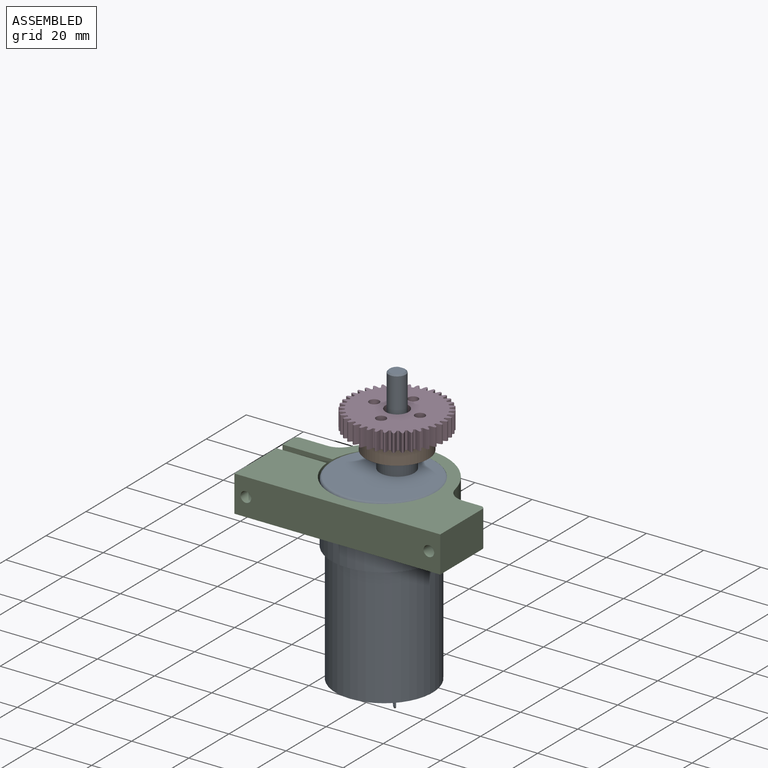
[diagram: assembled view]
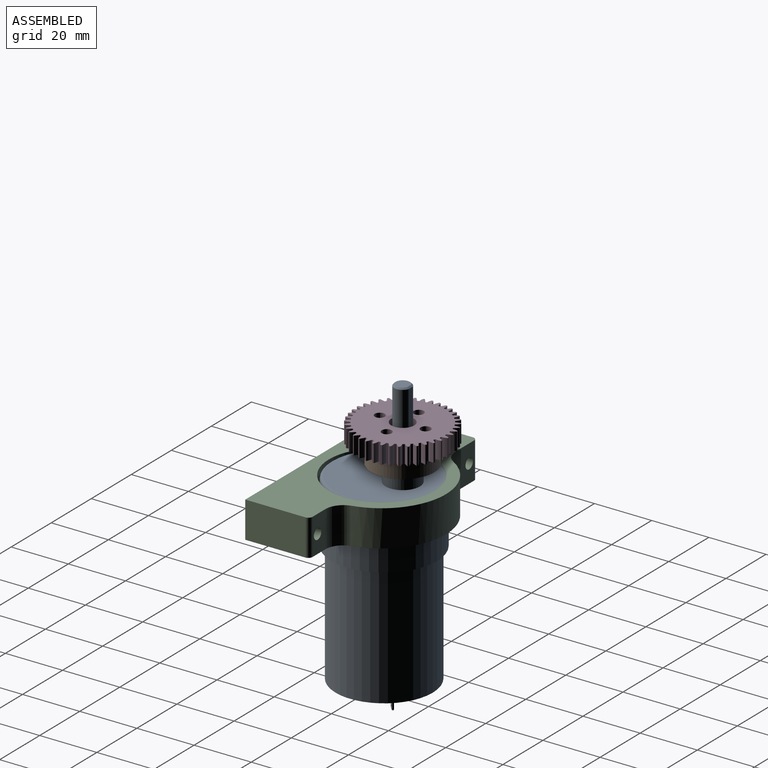
[diagram: assembled view, second angle]
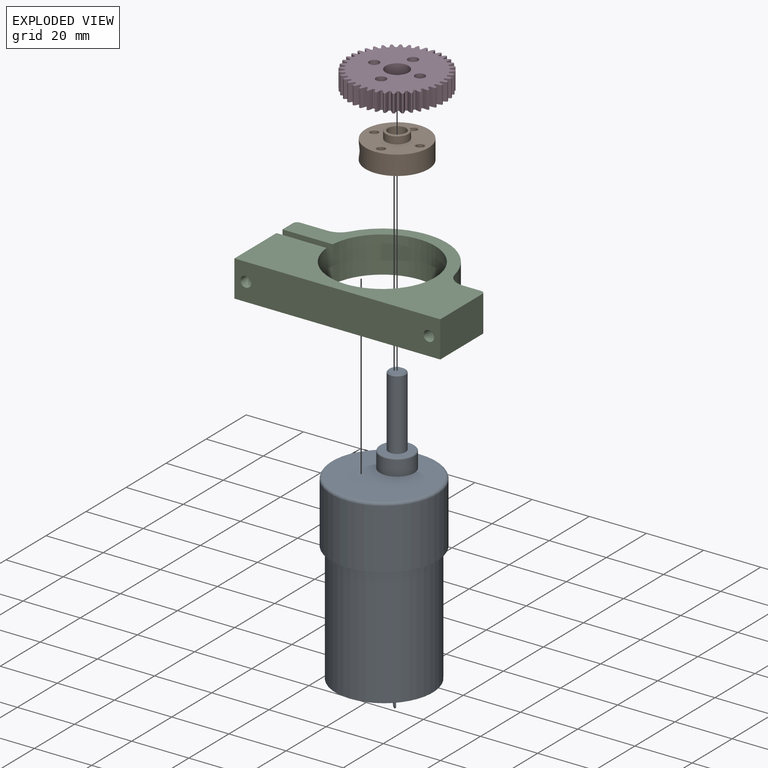
[diagram: exploded view]
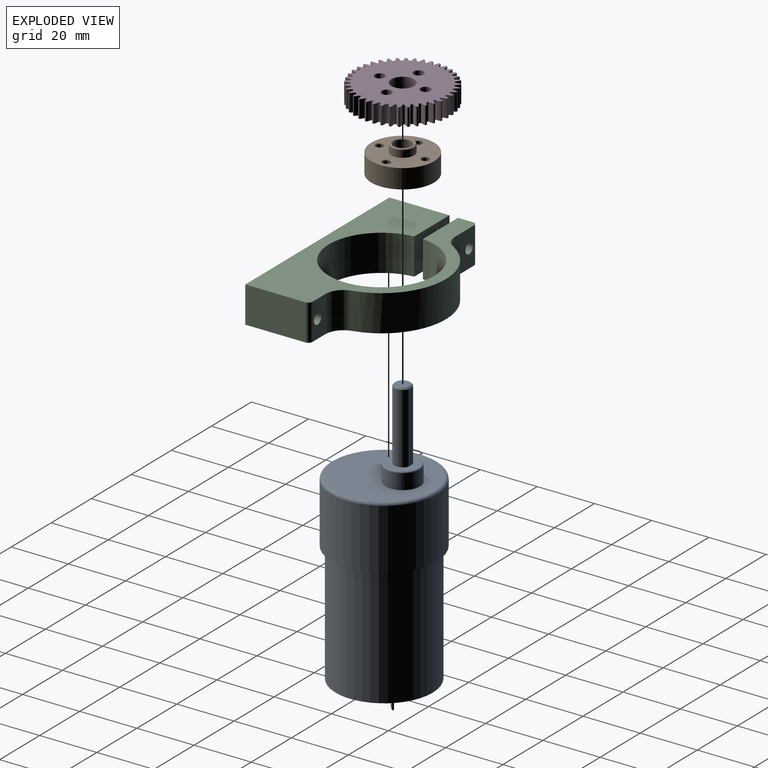
[diagram: exploded view, second angle]
ASSEMBLY  parts=4 mates=3
PART A: 37 faces, bbox 40.1x98.8x40.1 mm
  f0: cylinder r=3mm len=24.5mm, axis (0,-1,0), area 407.6mm2, adj f1,f3,f5
  f1: plane 24.5x2.16mm, normal (0,0,-1), area 53mm2, adj f0,f4,f5
  f2: plane 5x4.8mm, normal (0,1,0), area 19.4mm2, adj f3,f4
  f3: cone r=2.5mm half-angle=45deg, axis (0,-1,0), area 10.7mm2, adj f0,f2,f4
  f4: plane 2.17x0.51mm, normal (0,0.71,-0.71), area 1.5mm2, adj f1,f2,f3
  f5: plane 11x11mm, normal (0,1,0), area 67.1mm2, adj f0,f1,f36
  f6: plane 33x33mm, normal (0,-1,0), area 774.3mm2, adj f14,f15,f18,f19,f20,f21,f23,f24
  f7: plane 10x10mm, normal (0,-1,0), area 50.3mm2, adj f15,f16
  f8: plane 37x37mm, normal (0,-1,0), area 167.3mm2, adj f10,f12
  f9: plane 35x35mm, normal (0,1,0), area 849mm2, adj f11,f35
  f10: cylinder r=18.5mm len=37mm, axis (0,-1,0), area 2441mm2, adj f8,f35
  f11: cylinder r=6mm len=12mm, axis (0,-1,0), area 199.8mm2, adj f9,f36
  f12: cylinder r=17mm len=42mm, axis (0,1,0), area 4486.2mm2, adj f8,f13
  f13: plane 34x34mm, normal (0,-1,0), area 52.6mm2, adj f12,f14
  f14: cylinder r=16.5mm len=33mm, axis (0,-1,0), area 103.7mm2, adj f6,f13
  f15: cylinder r=5mm len=10mm, axis (0,1,0), area 31.4mm2, adj f6,f7
  f16: cylinder r=3mm len=6mm, axis (0,1,0), area 28.3mm2, adj f7,f30
  f17: plane 4x4mm, normal (0,-1,0), area 12.6mm2, adj f30
  f18: plane 4.5x0.35mm, normal (-0.71,0,-0.71), area 2.2mm2, adj f6,f19,f21,f33
  f19: plane 5x1.77mm, normal (0.71,0,-0.71), area 11.5mm2, adj f6,f18,f20,f22,f28,f33,f34
  f20: plane 4.5x0.35mm, normal (0.71,0,0.71), area 2.2mm2, adj f6,f19,f21,f34
  f21: plane 5x1.77mm, normal (-0.71,0,0.71), area 11.5mm2, adj f6,f18,f20,f22,f28,f33,f34
  f22: plane 1.41x1.41mm, normal (0,-1,0), area 0.8mm2, adj f19,f21,f33,f34
  f23: plane 4.5x0.35mm, normal (-0.71,0,0.71), area 2.3mm2, adj f6,f24,f26,f32
  f24: plane 5x1.77mm, normal (-0.71,0,-0.71), area 11.5mm2, adj f6,f23,f25,f27,f29,f31,f32
  f25: plane 4.5x0.35mm, normal (0.71,0,-0.71), area 2.2mm2, adj f6,f24,f26,f31
  f26: plane 5x1.77mm, normal (0.71,0,0.71), area 11.5mm2, adj f6,f23,f25,f27,f29,f31,f32
  f27: plane 1.41x1.41mm, normal (0,-1,0), area 0.7mm2, adj f24,f26,f31,f32
  f28: cylinder r=0.5mm len=1.06mm, axis (-0.71,0,0.71), area 1.6mm2, adj f19,f21
  f29: cylinder r=0.5mm len=1.06mm, axis (-0.71,0,-0.71), area 1.6mm2, adj f24,f26
  f30: cone r=2mm half-angle=45deg, axis (0,1,0), area 22.2mm2, adj f16,f17
  f31: plane 0.71x0.71mm, normal (0.5,-0.71,-0.5), area 0.4mm2, adj f24,f25,f26,f27
  f32: plane 0.71x0.71mm, normal (-0.5,-0.71,0.5), area 0.4mm2, adj f23,f24,f26,f27
  f33: plane 0.71x0.71mm, normal (-0.5,-0.71,-0.5), area 0.4mm2, adj f18,f19,f21,f22
  f34: plane 0.71x0.71mm, normal (0.5,-0.71,0.5), area 0.4mm2, adj f19,f20,f21,f22
  f35: torus R=17.5mm, axis (0,1,0), area 179mm2, adj f9,f10
  f36: torus R=5.5mm, axis (0,1,0), area 28.7mm2, adj f5,f11
PART B: 43 faces, bbox 22x22x9.5 mm
  f0: cylinder r=3.05mm len=9mm, axis (0,0,-1), area 85.7mm2, adj f1,f2,f4,f5,f6
  f1: cylinder r=3.05mm len=9mm, axis (0,0,-1), area 73.3mm2, adj f0,f3,f4,f5,f7
  f2: cone r=0mm half-angle=45deg, axis (0,0,1), area 3.5mm2, adj f0,f3,f8
  f3: cone r=0mm half-angle=45deg, axis (0,0,1), area 3.5mm2, adj f1,f2,f8
  f4: cylinder r=2.02mm len=8.72mm, axis (0.84,0.54,0), area 48.5mm2, adj f0,f1,f5,f17
  f5: cylinder r=2.02mm len=8.72mm, axis (0.84,0.54,0), area 48.5mm2, adj f0,f1,f4,f18
  f6: cone r=0mm half-angle=45deg, axis (0,0,-1), area 3.5mm2, adj f0,f7,f19
  f7: cone r=0mm half-angle=45deg, axis (0,0,-1), area 3.5mm2, adj f1,f6,f19
  f8: plane 7.52x7.5mm, normal (0,0,1), area 10mm2, adj f2,f3,f20,f21
  f9: cone r=0mm half-angle=45deg, axis (0,0,-1), area 1.6mm2, adj f10,f19,f22
  f10: cone r=0mm half-angle=45deg, axis (0,0,-1), area 1.6mm2, adj f9,f19,f23
  f11: cone r=0mm half-angle=45deg, axis (0,0,-1), area 1.6mm2, adj f12,f19,f24
  f12: cone r=0mm half-angle=45deg, axis (0,0,-1), area 1.6mm2, adj f11,f19,f25
  f13: cone r=0mm half-angle=45deg, axis (0,0,-1), area 1.6mm2, adj f14,f19,f26
  f14: cone r=0mm half-angle=45deg, axis (0,0,-1), area 1.6mm2, adj f13,f19,f27
  f15: cone r=0mm half-angle=45deg, axis (0,0,-1), area 1.6mm2, adj f16,f19,f28
  f16: cone r=0mm half-angle=45deg, axis (0,0,-1), area 1.6mm2, adj f15,f19,f29
  f17: bspline ~4.65x3.1mm, area 6.7mm2, adj f4,f18,f30
  f18: bspline ~4.65x3.1mm, area 6.7mm2, adj f5,f17,f30
  f19: plane 22.04x22mm, normal (0,0,-1), area 313.6mm2, adj f6,f7,f9,f10,f11,f12,f13,f14
  f20: cone r=0mm half-angle=45deg, axis (0,0,-1), area 4.3mm2, adj f8,f21,f32
  f21: cone r=0mm half-angle=45deg, axis (0,0,-1), area 4.3mm2, adj f8,f20,f33
  f22: cylinder r=1.35mm len=6.25mm, axis (0,0,-1), area 26.6mm2, adj f9,f23,f34
  f23: cylinder r=1.35mm len=6.25mm, axis (0,0,-1), area 26.6mm2, adj f10,f22,f35
  f24: cylinder r=1.35mm len=6.25mm, axis (0,0,-1), area 26.6mm2, adj f11,f25,f36
  f25: cylinder r=1.35mm len=6.25mm, axis (0,0,-1), area 26.6mm2, adj f12,f24,f37
  f26: cylinder r=1.35mm len=6.25mm, axis (0,0,-1), area 26.6mm2, adj f13,f27,f38
  f27: cylinder r=1.35mm len=6.25mm, axis (0,0,-1), area 26.6mm2, adj f14,f26,f39
  f28: cylinder r=1.35mm len=6.25mm, axis (0,0,-1), area 26.6mm2, adj f15,f29,f40
  f29: cylinder r=1.35mm len=6.25mm, axis (0,0,-1), area 26.6mm2, adj f16,f28,f41
  f30: cylinder r=11mm len=22mm, axis (0,0,1), area 210.3mm2, adj f17,f18,f19,f31,f42
  f31: cylinder r=11mm len=22mm, axis (0,0,1), area 233.3mm2, adj f19,f30,f42
  f32: cylinder r=4mm len=8mm, axis (0,0,1), area 31.4mm2, adj f20,f33,f42
  f33: cylinder r=4mm len=8mm, axis (0,0,1), area 31.4mm2, adj f21,f32,f42
  f34: cone r=0mm half-angle=45deg, axis (0,0,1), area 1.6mm2, adj f22,f35,f42
  f35: cone r=0mm half-angle=45deg, axis (0,0,1), area 1.6mm2, adj f23,f34,f42
  f36: cone r=0mm half-angle=45deg, axis (0,0,1), area 1.6mm2, adj f24,f37,f42
  f37: cone r=0mm half-angle=45deg, axis (0,0,1), area 1.6mm2, adj f25,f36,f42
  f38: cone r=0mm half-angle=45deg, axis (0,0,1), area 1.6mm2, adj f26,f39,f42
  f39: cone r=0mm half-angle=45deg, axis (0,0,1), area 1.6mm2, adj f27,f38,f42
  f40: cone r=0mm half-angle=45deg, axis (0,0,1), area 1.6mm2, adj f28,f41,f42
  f41: cone r=0mm half-angle=45deg, axis (0,0,1), area 1.6mm2, adj f29,f40,f42
  f42: plane 22.04x22mm, normal (0,0,1), area 297.6mm2, adj f30,f31,f32,f33,f34,f35,f36,f37
PART C: 22 faces, bbox 72x45x12.7 mm
  f0: cylinder r=1.85mm len=6.7mm, axis (0,-1,0), area 38.9mm2, adj f1,f12,f15
  f1: cylinder r=1.85mm len=6.7mm, axis (0,-1,0), area 38.9mm2, adj f0,f12,f15
  f2: cylinder r=1.85mm len=22.5mm, axis (0,-1,0), area 130.8mm2, adj f3,f8,f19
  f3: cylinder r=1.85mm len=22.5mm, axis (0,-1,0), area 130.8mm2, adj f2,f8,f19
  f4: cylinder r=1.85mm len=21mm, axis (0,-1,0), area 122.1mm2, adj f5,f17,f19
  f5: cylinder r=1.85mm len=21mm, axis (0,-1,0), area 122.1mm2, adj f4,f17,f19
  f6: plane 72x45.04mm, normal (0,0,1), area 1409.8mm2, adj f7,f8,f9,f10,f11,f12,f13,f14
  f7: cylinder r=1.5mm len=12.7mm, axis (0,0,-1), area 29.9mm2, adj f6,f8,f20,f21
  f8: plane 12.7x6.36mm, normal (0,1,0), area 70mm2, adj f2,f3,f6,f7,f9,f21
  f9: cylinder r=6.35mm len=12.7mm, axis (0,0,1), area 108.8mm2, adj f6,f8,f10,f21
  f10: cylinder r=22.5mm len=41.38mm, axis (0,0,1), area 683.2mm2, adj f6,f9,f11,f21
  f11: cylinder r=6.35mm len=12.7mm, axis (0,0,1), area 84mm2, adj f6,f10,f12,f21
  f12: plane 12.7x9.59mm, normal (0,1,0), area 111mm2, adj f0,f1,f6,f11,f13,f21
  f13: cylinder r=1.5mm len=12.7mm, axis (0,0,-1), area 29.9mm2, adj f6,f12,f14,f21
  f14: plane 12.7x5.2mm, normal (-1,0,0), area 66mm2, adj f6,f13,f15,f21
  f15: plane 17.56x12.7mm, normal (0,-1,0), area 212.3mm2, adj f0,f1,f6,f14,f16,f21
  f16: cylinder r=18.5mm len=37mm, axis (0,0,1), area 1438.1mm2, adj f6,f15,f17,f21
  f17: plane 17.56x12.7mm, normal (0,1,0), area 212.3mm2, adj f4,f5,f6,f16,f18,f21
  f18: plane 21x12.7mm, normal (-1,0,0), area 266.7mm2, adj f6,f17,f19,f21
  f19: plane 72x12.7mm, normal (0,-1,0), area 892.9mm2, adj f2,f3,f4,f5,f6,f18,f20,f21
  f20: plane 21x12.7mm, normal (1,0,0), area 266.7mm2, adj f6,f7,f19,f21
  f21: plane 72x45.04mm, normal (0,0,-1), area 1409.8mm2, adj f7,f8,f9,f10,f11,f12,f13,f14
PART D: 172 faces, bbox 6.2x33.6x33.6 mm
  f0: plane 33.55x33.55mm, normal (-1,0,0), area 702.1mm2, adj f1,f2,f3,f4,f5,f6,f7,f8
  f1: cylinder r=6.4mm len=6.2mm, axis (-1,0,0), area 11.9mm2, adj f0,f2,f160,f171
  f2: cylinder r=16.8mm len=6.2mm, axis (-1,0,0), area 3.1mm2, adj f0,f1,f3,f171
  f3: cylinder r=6.4mm len=6.2mm, axis (-1,0,0), area 11.9mm2, adj f0,f2,f4,f171
  f4: cylinder r=15mm len=6.2mm, axis (-1,0,0), area 4.4mm2, adj f0,f3,f5,f171
  f5: cylinder r=6.4mm len=6.2mm, axis (-1,0,0), area 11.9mm2, adj f0,f4,f6,f171
  f6: cylinder r=16.8mm len=6.2mm, axis (-1,0,0), area 3.1mm2, adj f0,f5,f7,f171
  f7: cylinder r=6.4mm len=6.2mm, axis (-1,0,0), area 11.9mm2, adj f0,f6,f8,f171
  f8: cylinder r=15mm len=6.2mm, axis (-1,0,0), area 4.4mm2, adj f0,f7,f9,f171
  f9: cylinder r=6.4mm len=6.2mm, axis (-1,0,0), area 11.9mm2, adj f0,f8,f10,f171
  f10: cylinder r=16.8mm len=6.2mm, axis (-1,0,0), area 3.1mm2, adj f0,f9,f11,f171
  f11: cylinder r=6.4mm len=6.2mm, axis (-1,0,0), area 11.9mm2, adj f0,f10,f12,f171
  f12: cylinder r=15mm len=6.2mm, axis (-1,0,0), area 4.4mm2, adj f0,f11,f13,f171
  f13: cylinder r=6.4mm len=6.2mm, axis (-1,0,0), area 11.9mm2, adj f0,f12,f14,f171
  f14: cylinder r=16.8mm len=6.2mm, axis (-1,0,0), area 3.1mm2, adj f0,f13,f15,f171
  f15: cylinder r=6.4mm len=6.2mm, axis (-1,0,0), area 11.9mm2, adj f0,f14,f16,f171
  f16: cylinder r=15mm len=6.2mm, axis (-1,0,0), area 4.4mm2, adj f0,f15,f17,f171
  f17: cylinder r=6.4mm len=6.2mm, axis (-1,0,0), area 11.9mm2, adj f0,f16,f18,f171
  f18: cylinder r=16.8mm len=6.2mm, axis (-1,0,0), area 3.1mm2, adj f0,f17,f19,f171
  f19: cylinder r=6.4mm len=6.2mm, axis (-1,0,0), area 11.9mm2, adj f0,f18,f20,f171
  f20: cylinder r=15mm len=6.2mm, axis (-1,0,0), area 4.4mm2, adj f0,f19,f21,f171
  f21: cylinder r=6.4mm len=6.2mm, axis (-1,0,0), area 11.9mm2, adj f0,f20,f22,f171
  f22: cylinder r=16.8mm len=6.2mm, axis (-1,0,0), area 3.1mm2, adj f0,f21,f23,f171
  f23: cylinder r=6.4mm len=6.2mm, axis (-1,0,0), area 11.9mm2, adj f0,f22,f24,f171
  f24: cylinder r=15mm len=6.2mm, axis (-1,0,0), area 4.4mm2, adj f0,f23,f25,f171
  f25: cylinder r=6.4mm len=6.2mm, axis (-1,0,0), area 11.9mm2, adj f0,f24,f26,f171
  f26: cylinder r=16.8mm len=6.2mm, axis (-1,0,0), area 3.1mm2, adj f0,f25,f27,f171
  f27: cylinder r=6.4mm len=6.2mm, axis (-1,0,0), area 11.9mm2, adj f0,f26,f28,f171
  f28: cylinder r=15mm len=6.2mm, axis (-1,0,0), area 4.4mm2, adj f0,f27,f29,f171
  f29: cylinder r=6.4mm len=6.2mm, axis (-1,0,0), area 11.9mm2, adj f0,f28,f30,f171
  f30: cylinder r=16.8mm len=6.2mm, axis (-1,0,0), area 3.1mm2, adj f0,f29,f31,f171
  f31: cylinder r=6.4mm len=6.2mm, axis (-1,0,0), area 11.9mm2, adj f0,f30,f32,f171
  f32: cylinder r=15mm len=6.2mm, axis (-1,0,0), area 4.4mm2, adj f0,f31,f33,f171
  f33: cylinder r=6.4mm len=6.2mm, axis (-1,0,0), area 11.9mm2, adj f0,f32,f34,f171
  f34: cylinder r=16.8mm len=6.2mm, axis (-1,0,0), area 3.1mm2, adj f0,f33,f35,f171
  f35: cylinder r=6.4mm len=6.2mm, axis (-1,0,0), area 11.9mm2, adj f0,f34,f36,f171
  f36: cylinder r=15mm len=6.2mm, axis (-1,0,0), area 4.4mm2, adj f0,f35,f37,f171
  f37: cylinder r=6.4mm len=6.2mm, axis (-1,0,0), area 11.9mm2, adj f0,f36,f38,f171
  f38: cylinder r=16.8mm len=6.2mm, axis (-1,0,0), area 3.1mm2, adj f0,f37,f39,f171
  f39: cylinder r=6.4mm len=6.2mm, axis (-1,0,0), area 11.9mm2, adj f0,f38,f40,f171
  f40: cylinder r=15mm len=6.2mm, axis (-1,0,0), area 4.4mm2, adj f0,f39,f41,f171
  f41: cylinder r=6.4mm len=6.2mm, axis (-1,0,0), area 11.9mm2, adj f0,f40,f42,f171
  f42: cylinder r=16.8mm len=6.2mm, axis (-1,0,0), area 3.1mm2, adj f0,f41,f43,f171
  f43: cylinder r=6.4mm len=6.2mm, axis (-1,0,0), area 11.9mm2, adj f0,f42,f44,f171
  f44: cylinder r=15mm len=6.2mm, axis (-1,0,0), area 4.4mm2, adj f0,f43,f45,f171
  f45: cylinder r=6.4mm len=6.2mm, axis (-1,0,0), area 11.9mm2, adj f0,f44,f46,f171
  f46: cylinder r=16.8mm len=6.2mm, axis (-1,0,0), area 3.1mm2, adj f0,f45,f47,f171
  f47: cylinder r=6.4mm len=6.2mm, axis (-1,0,0), area 11.9mm2, adj f0,f46,f48,f171
  f48: cylinder r=15mm len=6.2mm, axis (-1,0,0), area 4.4mm2, adj f0,f47,f49,f171
  f49: cylinder r=6.4mm len=6.2mm, axis (-1,0,0), area 11.9mm2, adj f0,f48,f50,f171
  f50: cylinder r=16.8mm len=6.2mm, axis (-1,0,0), area 3.1mm2, adj f0,f49,f51,f171
  f51: cylinder r=6.4mm len=6.2mm, axis (-1,0,0), area 11.9mm2, adj f0,f50,f52,f171
  f52: cylinder r=15mm len=6.2mm, axis (-1,0,0), area 4.4mm2, adj f0,f51,f53,f171
  f53: cylinder r=6.4mm len=6.2mm, axis (-1,0,0), area 11.9mm2, adj f0,f52,f54,f171
  f54: cylinder r=16.8mm len=6.2mm, axis (-1,0,0), area 3.1mm2, adj f0,f53,f55,f171
  f55: cylinder r=6.4mm len=6.2mm, axis (-1,0,0), area 11.9mm2, adj f0,f54,f56,f171
  f56: cylinder r=15mm len=6.2mm, axis (-1,0,0), area 4.4mm2, adj f0,f55,f57,f171
  f57: cylinder r=6.4mm len=6.2mm, axis (-1,0,0), area 11.9mm2, adj f0,f56,f58,f171
  f58: cylinder r=16.8mm len=6.2mm, axis (-1,0,0), area 3.1mm2, adj f0,f57,f59,f171
  f59: cylinder r=6.4mm len=6.2mm, axis (-1,0,0), area 11.9mm2, adj f0,f58,f60,f171
  f60: cylinder r=15mm len=6.2mm, axis (-1,0,0), area 4.4mm2, adj f0,f59,f61,f171
  f61: cylinder r=6.4mm len=6.2mm, axis (-1,0,0), area 11.9mm2, adj f0,f60,f62,f171
  f62: cylinder r=16.8mm len=6.2mm, axis (-1,0,0), area 3.1mm2, adj f0,f61,f63,f171
  f63: cylinder r=6.4mm len=6.2mm, axis (-1,0,0), area 11.9mm2, adj f0,f62,f64,f171
  f64: cylinder r=15mm len=6.2mm, axis (-1,0,0), area 4.4mm2, adj f0,f63,f65,f171
  f65: cylinder r=6.4mm len=6.2mm, axis (-1,0,0), area 11.9mm2, adj f0,f64,f66,f171
  f66: cylinder r=16.8mm len=6.2mm, axis (-1,0,0), area 3.1mm2, adj f0,f65,f67,f171
  f67: cylinder r=6.4mm len=6.2mm, axis (-1,0,0), area 11.9mm2, adj f0,f66,f68,f171
  f68: cylinder r=15mm len=6.2mm, axis (-1,0,0), area 4.4mm2, adj f0,f67,f69,f171
  f69: cylinder r=6.4mm len=6.2mm, axis (-1,0,0), area 11.9mm2, adj f0,f68,f70,f171
  f70: cylinder r=16.8mm len=6.2mm, axis (-1,0,0), area 3.1mm2, adj f0,f69,f71,f171
  f71: cylinder r=6.4mm len=6.2mm, axis (-1,0,0), area 11.9mm2, adj f0,f70,f72,f171
  f72: cylinder r=15mm len=6.2mm, axis (-1,0,0), area 4.4mm2, adj f0,f71,f73,f171
  f73: cylinder r=6.4mm len=6.2mm, axis (-1,0,0), area 11.9mm2, adj f0,f72,f74,f171
  f74: cylinder r=16.8mm len=6.2mm, axis (-1,0,0), area 3.1mm2, adj f0,f73,f75,f171
  f75: cylinder r=6.4mm len=6.2mm, axis (-1,0,0), area 11.9mm2, adj f0,f74,f76,f171
  f76: cylinder r=15mm len=6.2mm, axis (-1,0,0), area 4.4mm2, adj f0,f75,f77,f171
  f77: cylinder r=6.4mm len=6.2mm, axis (-1,0,0), area 11.9mm2, adj f0,f76,f78,f171
  f78: cylinder r=16.8mm len=6.2mm, axis (-1,0,0), area 3.1mm2, adj f0,f77,f79,f171
  f79: cylinder r=6.4mm len=6.2mm, axis (-1,0,0), area 11.9mm2, adj f0,f78,f80,f171
  f80: cylinder r=15mm len=6.2mm, axis (-1,0,0), area 4.4mm2, adj f0,f79,f81,f171
  f81: cylinder r=6.4mm len=6.2mm, axis (-1,0,0), area 11.9mm2, adj f0,f80,f82,f171
  f82: cylinder r=16.8mm len=6.2mm, axis (-1,0,0), area 3.1mm2, adj f0,f81,f83,f171
  f83: cylinder r=6.4mm len=6.2mm, axis (-1,0,0), area 11.9mm2, adj f0,f82,f84,f171
  f84: cylinder r=15mm len=6.2mm, axis (-1,0,0), area 4.4mm2, adj f0,f83,f85,f171
  f85: cylinder r=6.4mm len=6.2mm, axis (-1,0,0), area 11.9mm2, adj f0,f84,f86,f171
  f86: cylinder r=16.8mm len=6.2mm, axis (-1,0,0), area 3.1mm2, adj f0,f85,f87,f171
  f87: cylinder r=6.4mm len=6.2mm, axis (-1,0,0), area 11.9mm2, adj f0,f86,f88,f171
  f88: cylinder r=15mm len=6.2mm, axis (-1,0,0), area 4.4mm2, adj f0,f87,f89,f171
  f89: cylinder r=6.4mm len=6.2mm, axis (-1,0,0), area 11.9mm2, adj f0,f88,f90,f171
  f90: cylinder r=16.8mm len=6.2mm, axis (-1,0,0), area 3.1mm2, adj f0,f89,f91,f171
  f91: cylinder r=6.4mm len=6.2mm, axis (-1,0,0), area 11.9mm2, adj f0,f90,f92,f171
  f92: cylinder r=15mm len=6.2mm, axis (-1,0,0), area 4.4mm2, adj f0,f91,f93,f171
  f93: cylinder r=6.4mm len=6.2mm, axis (-1,0,0), area 11.9mm2, adj f0,f92,f94,f171
  f94: cylinder r=16.8mm len=6.2mm, axis (-1,0,0), area 3.1mm2, adj f0,f93,f95,f171
  f95: cylinder r=6.4mm len=6.2mm, axis (-1,0,0), area 11.9mm2, adj f0,f94,f96,f171
  f96: cylinder r=15mm len=6.2mm, axis (-1,0,0), area 4.4mm2, adj f0,f95,f97,f171
  f97: cylinder r=6.4mm len=6.2mm, axis (-1,0,0), area 11.9mm2, adj f0,f96,f98,f171
  f98: cylinder r=16.8mm len=6.2mm, axis (-1,0,0), area 3.1mm2, adj f0,f97,f99,f171
  f99: cylinder r=6.4mm len=6.2mm, axis (-1,0,0), area 11.9mm2, adj f0,f98,f100,f171
  f100: cylinder r=15mm len=6.2mm, axis (-1,0,0), area 4.4mm2, adj f0,f99,f101,f171
  f101: cylinder r=6.4mm len=6.2mm, axis (-1,0,0), area 11.9mm2, adj f0,f100,f102,f171
  f102: cylinder r=16.8mm len=6.2mm, axis (-1,0,0), area 3.1mm2, adj f0,f101,f103,f171
  f103: cylinder r=6.4mm len=6.2mm, axis (-1,0,0), area 11.9mm2, adj f0,f102,f104,f171
  f104: cylinder r=15mm len=6.2mm, axis (-1,0,0), area 4.4mm2, adj f0,f103,f105,f171
  f105: cylinder r=6.4mm len=6.2mm, axis (-1,0,0), area 11.9mm2, adj f0,f104,f106,f171
  f106: cylinder r=16.8mm len=6.2mm, axis (-1,0,0), area 3.1mm2, adj f0,f105,f107,f171
  f107: cylinder r=6.4mm len=6.2mm, axis (-1,0,0), area 11.9mm2, adj f0,f106,f108,f171
  f108: cylinder r=15mm len=6.2mm, axis (-1,0,0), area 4.4mm2, adj f0,f107,f109,f171
  f109: cylinder r=6.4mm len=6.2mm, axis (-1,0,0), area 11.9mm2, adj f0,f108,f110,f171
  f110: cylinder r=16.8mm len=6.2mm, axis (-1,0,0), area 3.1mm2, adj f0,f109,f111,f171
  f111: cylinder r=6.4mm len=6.2mm, axis (-1,0,0), area 11.9mm2, adj f0,f110,f112,f171
  f112: cylinder r=15mm len=6.2mm, axis (-1,0,0), area 4.4mm2, adj f0,f111,f113,f171
  f113: cylinder r=6.4mm len=6.2mm, axis (-1,0,0), area 11.9mm2, adj f0,f112,f114,f171
  f114: cylinder r=16.8mm len=6.2mm, axis (-1,0,0), area 3.1mm2, adj f0,f113,f115,f171
  f115: cylinder r=6.4mm len=6.2mm, axis (-1,0,0), area 11.9mm2, adj f0,f114,f116,f171
  f116: cylinder r=15mm len=6.2mm, axis (-1,0,0), area 4.4mm2, adj f0,f115,f117,f171
  f117: cylinder r=6.4mm len=6.2mm, axis (-1,0,0), area 11.9mm2, adj f0,f116,f118,f171
  f118: cylinder r=16.8mm len=6.2mm, axis (-1,0,0), area 3.1mm2, adj f0,f117,f119,f171
  f119: cylinder r=6.4mm len=6.2mm, axis (-1,0,0), area 11.9mm2, adj f0,f118,f120,f171
  f120: cylinder r=15mm len=6.2mm, axis (-1,0,0), area 4.4mm2, adj f0,f119,f121,f171
  f121: cylinder r=6.4mm len=6.2mm, axis (-1,0,0), area 11.9mm2, adj f0,f120,f122,f171
  f122: cylinder r=16.8mm len=6.2mm, axis (-1,0,0), area 3.1mm2, adj f0,f121,f123,f171
  f123: cylinder r=6.4mm len=6.2mm, axis (-1,0,0), area 11.9mm2, adj f0,f122,f124,f171
  f124: cylinder r=15mm len=6.2mm, axis (-1,0,0), area 4.4mm2, adj f0,f123,f125,f171
  f125: cylinder r=6.4mm len=6.2mm, axis (-1,0,0), area 11.9mm2, adj f0,f124,f126,f171
  f126: cylinder r=16.8mm len=6.2mm, axis (-1,0,0), area 3.1mm2, adj f0,f125,f127,f171
  f127: cylinder r=6.4mm len=6.2mm, axis (-1,0,0), area 11.9mm2, adj f0,f126,f128,f171
  f128: cylinder r=15mm len=6.2mm, axis (-1,0,0), area 4.4mm2, adj f0,f127,f129,f171
  f129: cylinder r=6.4mm len=6.2mm, axis (-1,0,0), area 11.9mm2, adj f0,f128,f130,f171
  f130: cylinder r=16.8mm len=6.2mm, axis (-1,0,0), area 3.1mm2, adj f0,f129,f131,f171
  f131: cylinder r=6.4mm len=6.2mm, axis (-1,0,0), area 11.9mm2, adj f0,f130,f132,f171
  f132: cylinder r=15mm len=6.2mm, axis (-1,0,0), area 4.4mm2, adj f0,f131,f133,f171
  f133: cylinder r=6.4mm len=6.2mm, axis (-1,0,0), area 11.9mm2, adj f0,f132,f134,f171
  f134: cylinder r=16.8mm len=6.2mm, axis (-1,0,0), area 3.1mm2, adj f0,f133,f135,f171
  f135: cylinder r=6.4mm len=6.2mm, axis (-1,0,0), area 11.9mm2, adj f0,f134,f136,f171
  f136: cylinder r=15mm len=6.2mm, axis (-1,0,0), area 4.4mm2, adj f0,f135,f137,f171
  f137: cylinder r=6.4mm len=6.2mm, axis (-1,0,0), area 11.9mm2, adj f0,f136,f138,f171
  f138: cylinder r=16.8mm len=6.2mm, axis (-1,0,0), area 3.1mm2, adj f0,f137,f139,f171
  f139: cylinder r=6.4mm len=6.2mm, axis (-1,0,0), area 11.9mm2, adj f0,f138,f140,f171
  f140: cylinder r=15mm len=6.2mm, axis (-1,0,0), area 4.4mm2, adj f0,f139,f141,f171
  f141: cylinder r=6.4mm len=6.2mm, axis (-1,0,0), area 11.9mm2, adj f0,f140,f142,f171
  f142: cylinder r=16.8mm len=6.2mm, axis (-1,0,0), area 3.1mm2, adj f0,f141,f143,f171
  f143: cylinder r=6.4mm len=6.2mm, axis (-1,0,0), area 11.9mm2, adj f0,f142,f144,f171
  f144: cylinder r=15mm len=6.2mm, axis (-1,0,0), area 4.4mm2, adj f0,f143,f145,f171
  f145: cylinder r=6.4mm len=6.2mm, axis (-1,0,0), area 11.9mm2, adj f0,f144,f146,f171
  f146: cylinder r=16.8mm len=6.2mm, axis (-1,0,0), area 3.1mm2, adj f0,f145,f147,f171
  f147: cylinder r=6.4mm len=6.2mm, axis (-1,0,0), area 11.9mm2, adj f0,f146,f148,f171
  f148: cylinder r=15mm len=6.2mm, axis (-1,0,0), area 4.4mm2, adj f0,f147,f149,f171
  f149: cylinder r=6.4mm len=6.2mm, axis (-1,0,0), area 11.9mm2, adj f0,f148,f150,f171
  f150: cylinder r=16.8mm len=6.2mm, axis (-1,0,0), area 3.1mm2, adj f0,f149,f151,f171
  f151: cylinder r=6.4mm len=6.2mm, axis (-1,0,0), area 11.9mm2, adj f0,f150,f152,f171
  f152: cylinder r=15mm len=6.2mm, axis (-1,0,0), area 4.4mm2, adj f0,f151,f153,f171
  f153: cylinder r=6.4mm len=6.2mm, axis (-1,0,0), area 11.9mm2, adj f0,f152,f154,f171
  f154: cylinder r=16.8mm len=6.2mm, axis (-1,0,0), area 3.1mm2, adj f0,f153,f155,f171
  f155: cylinder r=6.4mm len=6.2mm, axis (-1,0,0), area 11.9mm2, adj f0,f154,f156,f171
  f156: cylinder r=15mm len=6.2mm, axis (-1,0,0), area 4.4mm2, adj f0,f155,f157,f171
  f157: cylinder r=6.4mm len=6.2mm, axis (-1,0,0), area 11.9mm2, adj f0,f156,f158,f171
  f158: cylinder r=16.8mm len=6.2mm, axis (-1,0,0), area 3.1mm2, adj f0,f157,f159,f171
  f159: cylinder r=6.4mm len=6.2mm, axis (-1,0,0), area 11.9mm2, adj f0,f158,f160,f171
  f160: cylinder r=15mm len=6.2mm, axis (-1,0,0), area 4.4mm2, adj f0,f1,f159,f171
  f161: cylinder r=1.75mm len=6.2mm, axis (1,0,0), area 34.1mm2, adj f0,f162,f171
  f162: cylinder r=1.75mm len=6.2mm, axis (1,0,0), area 34.1mm2, adj f0,f161,f171
  f163: cylinder r=1.75mm len=6.2mm, axis (1,0,0), area 34.1mm2, adj f0,f164,f171
  f164: cylinder r=1.75mm len=6.2mm, axis (1,0,0), area 34.1mm2, adj f0,f163,f171
  f165: cylinder r=1.75mm len=6.2mm, axis (1,0,0), area 34.1mm2, adj f0,f166,f171
  f166: cylinder r=1.75mm len=6.2mm, axis (1,0,0), area 34.1mm2, adj f0,f165,f171
  f167: cylinder r=1.75mm len=6.2mm, axis (1,0,0), area 34.1mm2, adj f0,f168,f171
  f168: cylinder r=1.75mm len=6.2mm, axis (1,0,0), area 34.1mm2, adj f0,f167,f171
  f169: cylinder r=4mm len=8mm, axis (-1,0,0), area 77.9mm2, adj f0,f170,f171
  f170: cylinder r=4mm len=8mm, axis (-1,0,0), area 77.9mm2, adj f0,f169,f171
  f171: plane 33.55x33.55mm, normal (1,0,0), area 702.1mm2, adj f1,f2,f3,f4,f5,f6,f7,f8
PLACE A rot(axis=(1,0,0),90deg) t=(-237.89,165.96,155.17)mm
PLACE B rot(axis=(0,0,1),180deg) t=(-237.89,172.46,189.72)mm
PLACE C t=(-237.89,165.1,170.82)mm
PLACE D rot(axis=(0,-1,0),90deg) t=(-237.89,172.46,189.72)mm
MATE fastened D.f2 <-> B.f20  axis (0,0,-1) through (-237.89,172.46,189.72)mm
MATE cylindrical B.f20 <-> A.f0  axis (0,0,-1) through (-237.89,172.46,182.97)mm
MATE revolute A.f9 <-> C.f10  axis (0,0,1) through (-237.89,165.1,177.17)mm
